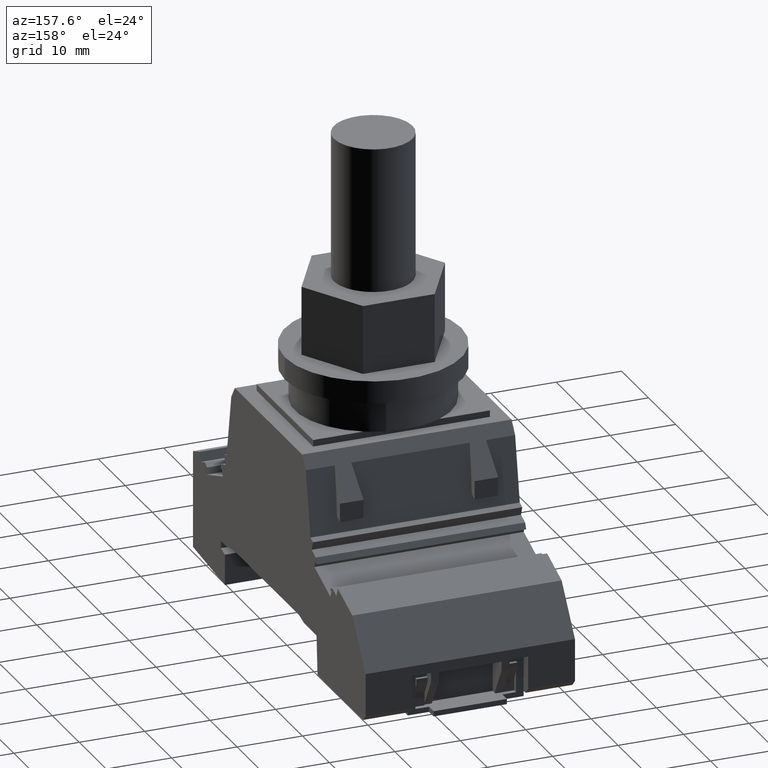
[diagram: clean part render]
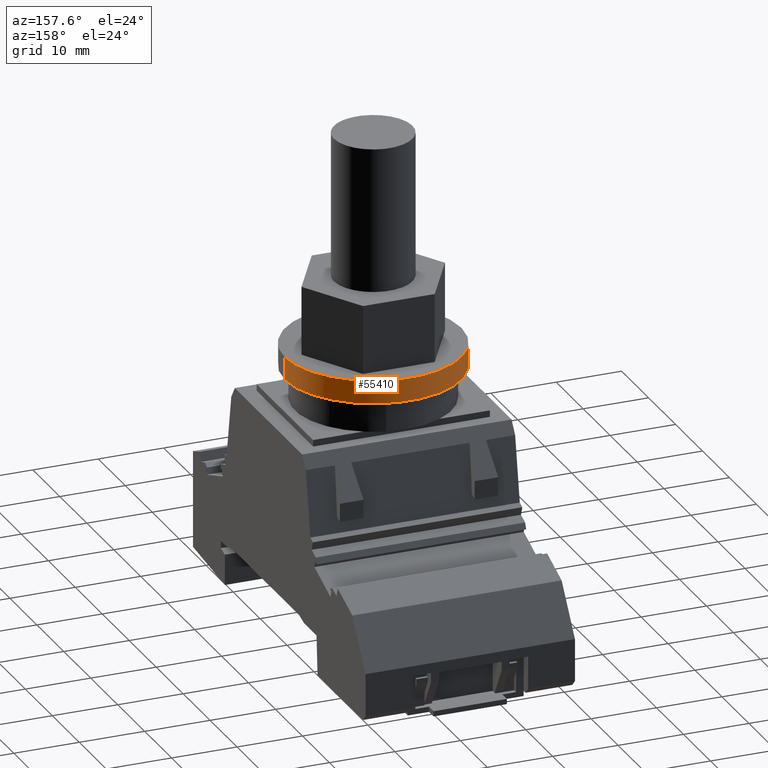
[diagram: same view with one face highlighted and labeled with its STEP entity id]
A machine part, auxiliary view. The second image highlights one B-rep face of the part: STEP entity #55410.
In plain terms, the highlighted cylindrical surface (partial cylindrical patch) has radius 13.5 mm, axis along (0, -0, 1).
Its self-contained STEP definition (entity closure, byte-faithful):
#51660=CARTESIAN_POINT('',(16.0000000000308,28.0000000629023,
38.5999999999106));
#51670=DIRECTION('',(8.98326009221167E-13,-9.0493081334717E-24,1.));
#51680=DIRECTION('',(1.,-1.33946823729005E-12,-8.98326009221167E-13));
#51690=AXIS2_PLACEMENT_3D('',#51660,#51670,#51680);
#51700=CIRCLE('',#51690,13.5);
#51710=CARTESIAN_POINT('',(29.5000000000308,28.0000000628843,
38.5999999998985));
#51720=VERTEX_POINT('',#51710);
#51730=CARTESIAN_POINT('',(2.50000000003083,28.0000000629204,
38.5999999999228));
#51740=VERTEX_POINT('',#51730);
#51750=EDGE_CURVE('',#51720,#51740,#51700,.T.);
#51990=CARTESIAN_POINT('',(2.50000000003083,28.0000000629204,
38.5999999999228));
#52000=DIRECTION('',(8.98326009221167E-13,-9.0493081334717E-24,1.));
#52010=VECTOR('',#52000,1.);
#52020=LINE('',#51990,#52010);
#52030=CARTESIAN_POINT('',(2.50000000003393,28.0000000629204,
42.0499995512617));
#52040=VERTEX_POINT('',#52030);
#52050=EDGE_CURVE('',#51740,#52040,#52020,.T.);
#52070=CARTESIAN_POINT('',(16.0000000000339,28.0000000629023,
42.0499995512496));
#52080=DIRECTION('',(8.98326009221167E-13,-9.0493081334717E-24,1.));
#52090=DIRECTION('',(1.,-1.33946823729005E-12,-8.98326009221167E-13));
#52100=AXIS2_PLACEMENT_3D('',#52070,#52080,#52090);
#52110=CIRCLE('',#52100,13.5);
#52120=CARTESIAN_POINT('',(29.5000000000339,28.0000000628843,
42.0499995512374));
#52130=VERTEX_POINT('',#52120);
#52160=CARTESIAN_POINT('',(29.5000000000308,28.0000000628843,
38.5999999998985));
#52170=DIRECTION('',(8.98326009221167E-13,-9.0493081334717E-24,1.));
#52180=VECTOR('',#52170,1.);
#52190=LINE('',#52160,#52180);
#52200=EDGE_CURVE('',#51720,#52130,#52190,.T.);
#52380=EDGE_CURVE('',#52130,#52040,#52110,.T.);
#55300=CARTESIAN_POINT('',(16.0000000000308,28.0000000629023,
38.5999999999106));
#55310=DIRECTION('',(8.98326009221167E-13,-9.0493081334717E-24,1.));
#55320=DIRECTION('',(1.,-1.33946823729005E-12,-8.98326009221167E-13));
#55330=AXIS2_PLACEMENT_3D('',#55300,#55310,#55320);
#55340=CYLINDRICAL_SURFACE('',#55330,13.5);
#55350=ORIENTED_EDGE('',*,*,#52380,.F.);
#55360=ORIENTED_EDGE('',*,*,#52050,.T.);
#55370=ORIENTED_EDGE('',*,*,#51750,.T.);
#55380=ORIENTED_EDGE('',*,*,#52200,.F.);
#55390=EDGE_LOOP('',(#55380,#55370,#55360,#55350));
#55400=FACE_OUTER_BOUND('',#55390,.T.);
#55410=ADVANCED_FACE('',(#55400),#55340,.T.);